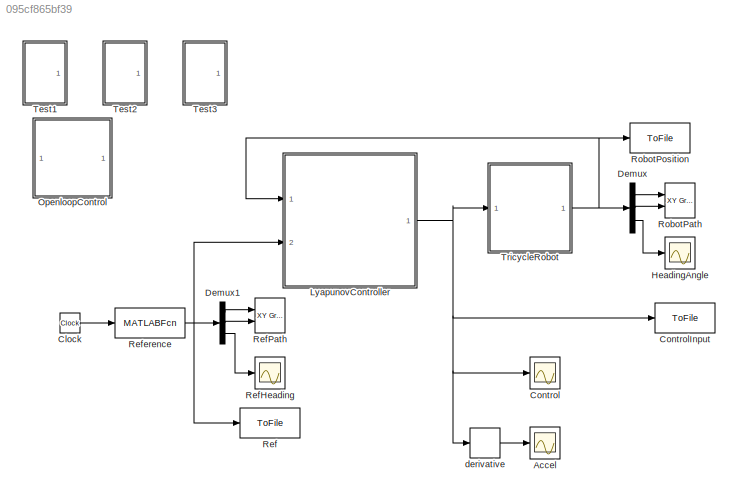
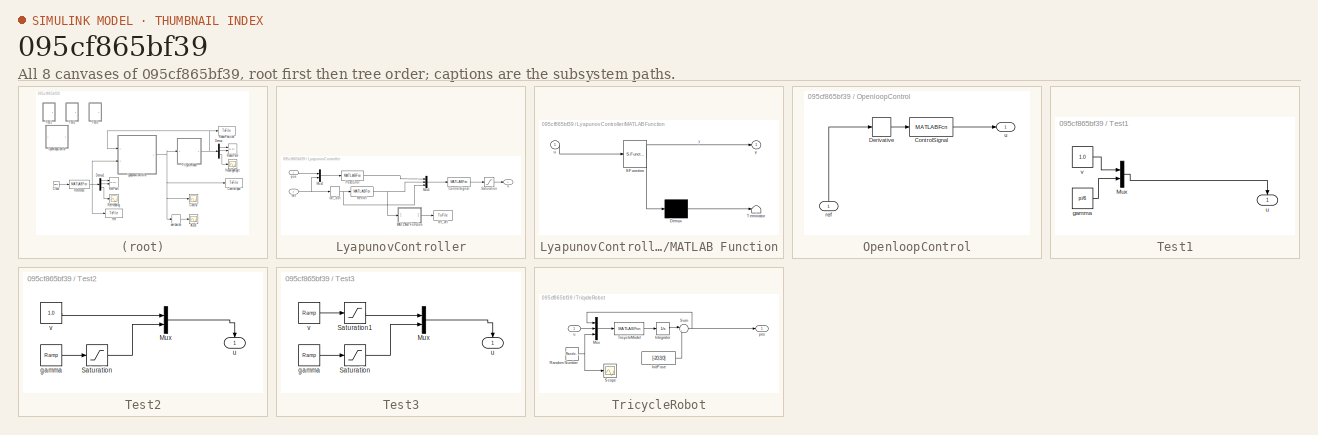
[diagram: thumbnail index - all 8 canvases of the model, root first then tree order]
MODEL slx_095cf865bf39
KIND model
CONFIG AbsTol = auto
CONFIG FixedStep = 0.1
CONFIG MaxStep = auto
CONFIG MinStep = auto
CONFIG RelTol = 1e-3
CONFIG SampleTimeConstraint = Unconstrained
CONFIG Solver = FixedStepAuto
CONFIG SolverMode = Auto
CONFIG SolverName = FixedStepAuto
CONFIG StartTime = 0.0
CONFIG StopTime = 50
BLOCK [Scope] Accel
  Ports = [1]
  ScopeSpecificationString = Simulink.scopes.TimeScopeBlockCfg('CurrentConfiguration', extmgr.ConfigurationSet(extmgr.Configuration('Core','General UI',true),extmgr.Configuration('Core','Source UI',true),extmgr.Configuration('Sources','WiredSimulink',true,'DataLoggingVariableName','ScopeData2'),extmgr.Configuration('Visuals','Time Domain',true,'SerializedDisplays',{struct('MinYLimReal','-5.97591','MaxYLimReal','11.81397','YLa...<+1390ch>
BLOCK [Clock] Clock
BLOCK [Scope] Control
  Ports = [1]
  ScopeSpecificationString = Simulink.scopes.TimeScopeBlockCfg('CurrentConfiguration', extmgr.ConfigurationSet(extmgr.Configuration('Core','General UI',true),extmgr.Configuration('Core','Source UI',true),extmgr.Configuration('Sources','WiredSimulink',true,'DataLoggingVariableName','ScopeData1'),extmgr.Configuration('Visuals','Time Domain',true,'SerializedDisplays',{struct('MinYLimReal','-1.00000','MaxYLimReal','1.00000','YLab...<+1368ch>
BLOCK [ToFile] ControlInput
  Filename = control.mat
  Ports = [1]
  SaveFormat = Timeseries
BLOCK [Demux] Demux
  DisplayOption = bar
  Outputs = 3
  Ports = [1, 3]
BLOCK [Demux] Demux1
  DisplayOption = bar
  Outputs = 3
  Ports = [1, 3]
BLOCK [Scope] HeadingAngle
  Ports = [1]
  ScopeSpecificationString = C++SS(StrPVP('SaveName','ScopeData'),StrPVP('LimitDataPoints','on'),StrPVP('DataFormat','Array'),StrPVP('Decimation','1'),StrPVP('BlockParamSampleInput','off'))
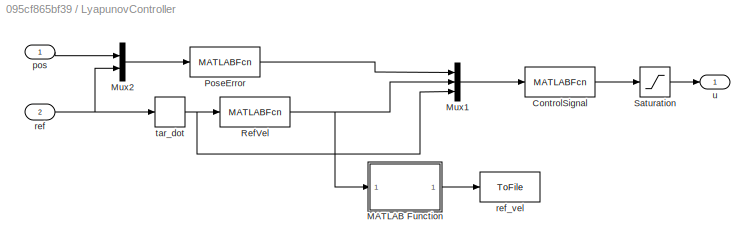
BLOCK [SubSystem] LyapunovController
  Ports = [2, 1]
  RequestExecContextInheritance = off
  Variant = off
BLOCK [MATLABFcn] LyapunovController/ControlSignal
  MATLABFcn = control_signal
  OutputDimensions = 2
  Ports = [1, 1]
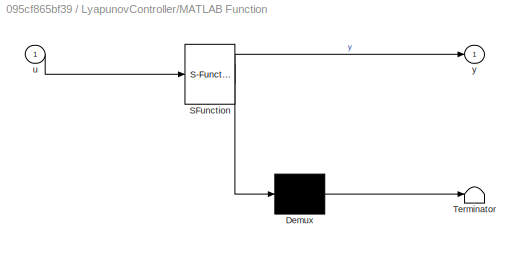
BLOCK [SubSystem] LyapunovController/MATLAB Function
  ErrorFcn = Stateflow.Translate.translate
  PermitHierarchicalResolution = ExplicitOnly
  Ports = [1, 1]
  RequestExecContextInheritance = off
  SFBlockType = MATLAB Function
  TreatAsAtomicUnit = on
  Variant = off
BLOCK [Demux] LyapunovController/MATLAB Function/ Demux 
  Outputs = 1
  Ports = [1, 1]
BLOCK [S-Function] LyapunovController/MATLAB Function/ SFunction 
  EnableBusSupport = on
  FunctionName = sf_sfun
  PortCounts = [1 2]
  Ports = [1, 2]
  SFunctionDeploymentMode = off
  Tag = Stateflow S-Function tricycle_v2 2
BLOCK [Terminator] LyapunovController/MATLAB Function/ Terminator 
BLOCK [Inport] LyapunovController/MATLAB Function/u
  IconDisplay = Port number
BLOCK [Outport] LyapunovController/MATLAB Function/y
  IconDisplay = Port number
BLOCK [Mux] LyapunovController/Mux1
  DisplayOption = bar
  Inputs = 3
  Ports = [3, 1]
BLOCK [Mux] LyapunovController/Mux2
  DisplayOption = bar
  Inputs = 2
  Ports = [2, 1]
BLOCK [MATLABFcn] LyapunovController/PoseError
  MATLABFcn = pos_err
  OutputDimensions = 3
  Ports = [1, 1]
BLOCK [MATLABFcn] LyapunovController/RefVel
  MATLABFcn = ref_vel
  OutputDimensions = 2
  Ports = [1, 1]
BLOCK [Saturate] LyapunovController/Saturation
  InputPortMap = u0
  LowerLimit = -[v_max; gamma_max]
  Ports = [1, 1]
  UpperLimit = [v_max; gamma_max]
BLOCK [Inport] LyapunovController/pos
  IconDisplay = Port number
BLOCK [Inport] LyapunovController/ref
  IconDisplay = Port number
  Port = 2
BLOCK [ToFile] LyapunovController/ref_vel
  Filename = ref_vel.mat
  Ports = [1]
  SaveFormat = Timeseries
BLOCK [Derivative] LyapunovController/tar_dot
BLOCK [Outport] LyapunovController/u
  IconDisplay = Port number
BLOCK [SubSystem] OpenloopControl
  Commented = on
  Ports = [1, 1]
  RequestExecContextInheritance = off
  Variant = off
BLOCK [MATLABFcn] OpenloopControl/ControlSignal
  MATLABFcn = open_control
  OutputDimensions = 2
  Ports = [1, 1]
BLOCK [Derivative] OpenloopControl/Derivative
BLOCK [Inport] OpenloopControl/ref
  IconDisplay = Port number
BLOCK [Outport] OpenloopControl/u
  IconDisplay = Port number
BLOCK [ToFile] Ref
  Filename = ref.mat
  Ports = [1]
  SaveFormat = Timeseries
BLOCK [Scope] RefHeading
  Ports = [1]
  ScopeSpecificationString = Simulink.scopes.TimeScopeBlockCfg('CurrentConfiguration', extmgr.ConfigurationSet(extmgr.Configuration('Core','General UI',true),extmgr.Configuration('Core','Source UI',true),extmgr.Configuration('Sources','WiredSimulink',true,'DataLoggingVariableName','ScopeData1'),extmgr.Configuration('Visuals','Time Domain',true,'SerializedDisplays',{struct('MinYLimReal','-1.10107','MaxYLimReal','2.05567','YLab...<+1359ch>
BLOCK [Reference] RefPath  REF=simulink/Sinks/XY Graph
  Ports = [2]
  SourceBlock = simulink/Sinks/XY Graph
  SourceType = XY scope.
BLOCK [MATLABFcn] Reference
  MATLABFcn = reference
  OutputDimensions = 3
  Ports = [1, 1]
BLOCK [Reference] RobotPath  REF=simulink/Sinks/XY Graph
  Ports = [2]
  SourceBlock = simulink/Sinks/XY Graph
  SourceType = XY scope.
BLOCK [ToFile] RobotPosition
  Filename = pose.mat
  Ports = [1]
  SaveFormat = Timeseries
BLOCK [SubSystem] Test1
  Commented = on
  Ports = [0, 1]
  RequestExecContextInheritance = off
  Variant = off
BLOCK [Mux] Test1/Mux
  DisplayOption = bar
  Inputs = 2
  Ports = [2, 1]
BLOCK [Constant] Test1/gamma
  Value = pi/6
BLOCK [Outport] Test1/u
  IconDisplay = Port number
BLOCK [Constant] Test1/v
  Value = 1.0
BLOCK [SubSystem] Test2
  Commented = on
  Ports = [0, 1]
  RequestExecContextInheritance = off
  Variant = off
BLOCK [Mux] Test2/Mux
  DisplayOption = bar
  Inputs = 2
  Ports = [2, 1]
BLOCK [Saturate] Test2/Saturation
  InputPortMap = u0
  LowerLimit = -gamma_max
  Ports = [1, 1]
  UpperLimit = gamma_max
BLOCK [Reference] Test2/gamma  REF=simulink/Sources/Ramp
  Ports = [0, 1]
  SourceBlock = simulink/Sources/Ramp
  SourceType = Ramp
BLOCK [Outport] Test2/u
  IconDisplay = Port number
BLOCK [Constant] Test2/v
  Value = 1.0
BLOCK [SubSystem] Test3
  Commented = on
  Ports = [0, 1]
  RequestExecContextInheritance = off
  Variant = off
BLOCK [Mux] Test3/Mux
  DisplayOption = bar
  Inputs = 2
  Ports = [2, 1]
BLOCK [Saturate] Test3/Saturation
  InputPortMap = u0
  LowerLimit = -gamma_max
  Ports = [1, 1]
  UpperLimit = gamma_max
BLOCK [Saturate] Test3/Saturation1
  InputPortMap = u0
  LowerLimit = -v_max
  Ports = [1, 1]
  UpperLimit = v_max
BLOCK [Reference] Test3/gamma  REF=simulink/Sources/Ramp
  Ports = [0, 1]
  SourceBlock = simulink/Sources/Ramp
  SourceType = Ramp
BLOCK [Outport] Test3/u
  IconDisplay = Port number
BLOCK [Reference] Test3/v  REF=simulink/Sources/Ramp
  Ports = [0, 1]
  SourceBlock = simulink/Sources/Ramp
  SourceType = Ramp
BLOCK [SubSystem] TricycleRobot
  Ports = [1, 1]
  RequestExecContextInheritance = off
  Variant = off
BLOCK [Constant] TricycleRobot/InitPose
  Value = [-20;3;0]
BLOCK [Integrator] TricycleRobot/Integrator
  Ports = [1, 1]
BLOCK [Mux] TricycleRobot/Mux
  DisplayOption = bar
  Inputs = 3
  Ports = [3, 1]
BLOCK [RandomNumber] TricycleRobot/Random Number
  SampleTime = 0.1
  Variance = 0
BLOCK [Scope] TricycleRobot/Scope
  Ports = [1]
  ScopeSpecificationString = Simulink.scopes.TimeScopeBlockCfg('CurrentConfiguration', extmgr.ConfigurationSet(extmgr.Configuration('Core','General UI',true,'FigureColor',[1 1 1]),extmgr.Configuration('Core','Source UI',true),extmgr.Configuration('Sources','WiredSimulink',true,'DataLoggingVariableName','ScopeData2'),extmgr.Configuration('Visuals','Time Domain',true,'SerializedDisplays',{struct('MinYLimReal','-1.08981','MaxYLi...<+1595ch>
BLOCK [Sum] TricycleRobot/Sum
  IconShape = round
  InputSameDT = off
  Inputs = |++
  OutDataTypeStr = Inherit: Inherit via internal rule
  Ports = [2, 1]
  SaturateOnIntegerOverflow = off
BLOCK [MATLABFcn] TricycleRobot/TricycleModel
  MATLABFcn = tricycle_model
  OutputDimensions = 3
  Ports = [1, 1]
BLOCK [Outport] TricycleRobot/pos
  IconDisplay = Port number
BLOCK [Inport] TricycleRobot/u
  IconDisplay = Port number
BLOCK [Derivative] derivative
LINE Clock:1 -> Reference:1
LINE Demux1:1 -> RefPath:1
LINE Demux1:2 -> RefPath:2
LINE Demux1:3 -> RefHeading:1
LINE Demux:1 -> RobotPath:1
LINE Demux:2 -> RobotPath:2
LINE Demux:3 -> HeadingAngle:1
LINE LyapunovController/ControlSignal:1 -> LyapunovController/Saturation:1
LINE LyapunovController/MATLAB Function:1 -> LyapunovController/ref_vel:1
LINE LyapunovController/Mux1:1 -> LyapunovController/ControlSignal:1
LINE LyapunovController/Mux2:1 -> LyapunovController/PoseError:1
LINE LyapunovController/PoseError:1 -> LyapunovController/Mux1:1
NET LyapunovController/RefVel:1 -> LyapunovController/MATLAB Function:1, LyapunovController/Mux1:2
LINE LyapunovController/Saturation:1 -> LyapunovController/u:1
LINE LyapunovController/pos:1 -> LyapunovController/Mux2:1
NET LyapunovController/ref:1 -> LyapunovController/Mux2:2, LyapunovController/tar_dot:1
NET LyapunovController/tar_dot:1 -> LyapunovController/Mux1:3, LyapunovController/RefVel:1
NET LyapunovController:1 -> Control:1, ControlInput:1, TricycleRobot:1, derivative:1
LINE OpenloopControl/ControlSignal:1 -> OpenloopControl/u:1
LINE OpenloopControl/Derivative:1 -> OpenloopControl/ControlSignal:1
LINE OpenloopControl/ref:1 -> OpenloopControl/Derivative:1
NET Reference:1 -> Demux1:1, LyapunovController:2, Ref:1
LINE Test1/Mux:1 -> Test1/u:1
LINE Test1/gamma:1 -> Test1/Mux:2
LINE Test1/v:1 -> Test1/Mux:1
LINE Test2/Mux:1 -> Test2/u:1
LINE Test2/Saturation:1 -> Test2/Mux:2
LINE Test2/gamma:1 -> Test2/Saturation:1
LINE Test2/v:1 -> Test2/Mux:1
LINE Test3/Mux:1 -> Test3/u:1
LINE Test3/Saturation1:1 -> Test3/Mux:1
LINE Test3/Saturation:1 -> Test3/Mux:2
LINE Test3/gamma:1 -> Test3/Saturation:1
LINE Test3/v:1 -> Test3/Saturation1:1
LINE TricycleRobot/InitPose:1 -> TricycleRobot/Sum:2
LINE TricycleRobot/Integrator:1 -> TricycleRobot/Sum:1
LINE TricycleRobot/Mux:1 -> TricycleRobot/TricycleModel:1
NET TricycleRobot/Random Number:1 -> TricycleRobot/Mux:3, TricycleRobot/Scope:1
NET TricycleRobot/Sum:1 -> TricycleRobot/Mux:1, TricycleRobot/pos:1
LINE TricycleRobot/TricycleModel:1 -> TricycleRobot/Integrator:1
LINE TricycleRobot/u:1 -> TricycleRobot/Mux:2
NET TricycleRobot:1 -> Demux:1, LyapunovController:1, RobotPosition:1
LINE derivative:1 -> Accel:1
note: NET lines group one-source signal fan-out (src -> all destinations, sorted); 1:1 wires keep LINE
CHART LyapunovController/MATLAB Function states=1 transitions=1
  STATE_LABEL 'eML_blk_kernel()'
  STATE_LABEL 'SCRIPT:\nfunction y = fcn(u)\n%#codegen\nd = 1.8166;\nv = u(1);\ngamma = atan2(u(2)*d, v);\ny = [v; gamma];'
